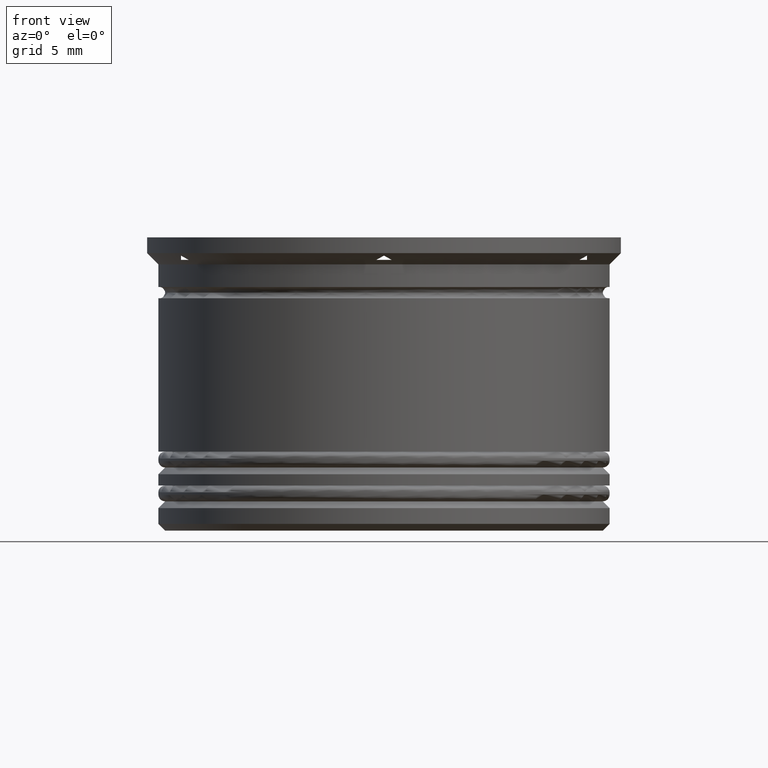
[diagram: clean part render]
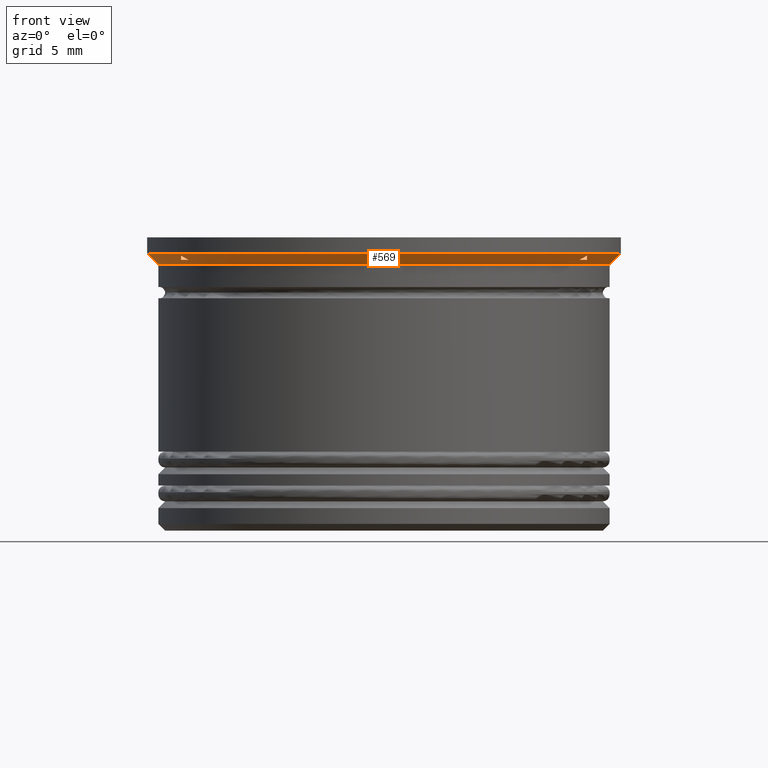
[diagram: same view with one face highlighted and labeled with its STEP entity id]
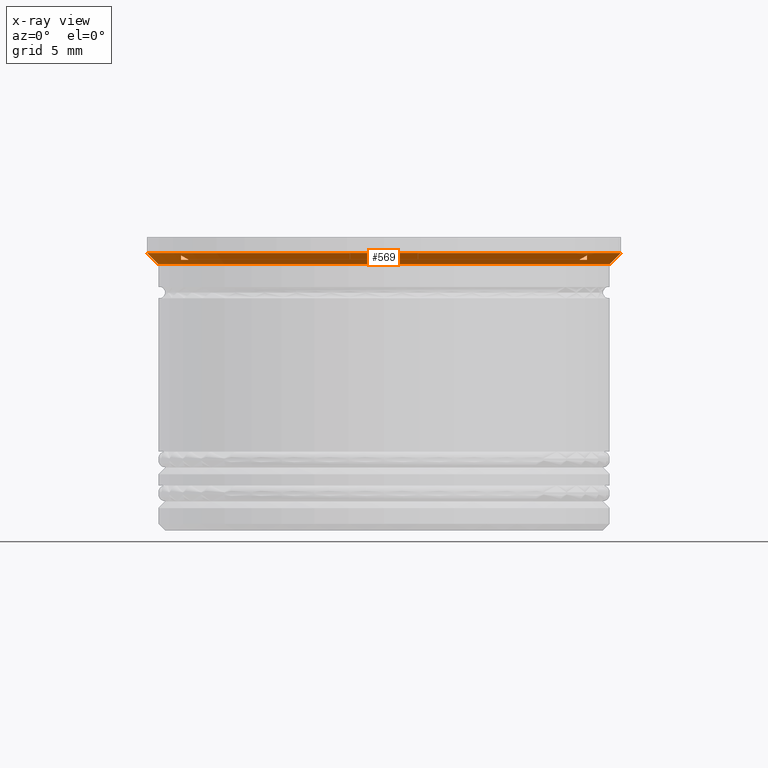
[diagram: x-ray of the same camera — body ghosted, the highlighted face saturated]
A machine part, front view. The second image highlights one B-rep face of the part: STEP entity #569.
The next image is the same camera in x-ray: the body ghosted, the highlighted face saturated — about 0% of this face is hidden behind the body in this view.
In plain terms, the highlighted conical surface has half-angle 45 deg.
Its self-contained STEP definition (entity closure, byte-faithful):
#1 = ORIENTED_EDGE ( 'NONE', *, *, #1690, .F. ) ;
#70 = DIRECTION ( 'NONE',  ( 1.000000000000000000, 0.000000000000000000, 0.000000000000000000 ) ) ;
#100 = CARTESIAN_POINT ( 'NONE',  ( 8.771878104801436038, -5.327858660307573935, -0.9375341423506967642 ) ) ;
#113 = CARTESIAN_POINT ( 'NONE',  ( 8.656921938165293540, -5.394228634059955674, -1.000000000000000000 ) ) ;
#119 = CARTESIAN_POINT ( 'NONE',  ( 0.000000000000000000, 0.000000000000000000, -1.000000000000000000 ) ) ;
#122 = DIRECTION ( 'NONE',  ( -0.000000000000000000, -0.000000000000000000, 1.000000000000000000 ) ) ;
#154 = CARTESIAN_POINT ( 'NONE',  ( 0.1135657146716469307, -10.32673764947687722, -0.8732623505231984495 ) ) ;
#159 = EDGE_CURVE ( 'NONE', #1623, #2000, #700, .T. ) ;
#164 = CARTESIAN_POINT ( 'NONE',  ( 0.000000000000000000, 0.000000000000000000, -0.6999999999999934053 ) ) ;
#166 = EDGE_CURVE ( 'NONE', #835, #1725, #699, .T. ) ;
#177 = CARTESIAN_POINT ( 'NONE',  ( -0.3430780618347059052, -10.19422863405994129, -1.000000000000000000 ) ) ;
#203 = CIRCLE ( 'NONE', #879, 10.19999999999999396 ) ;
#211 = EDGE_CURVE ( 'NONE', #1947, #1648, #1840, .T. ) ;
#235 = VECTOR ( 'NONE', #2147, 1000.000000000000000 ) ;
#282 = CARTESIAN_POINT ( 'NONE',  ( 8.886220419605121990, -5.261843094075900673, -0.8733858259559944548 ) ) ;
#286 = DIRECTION ( 'NONE',  ( -0.000000000000000000, -0.000000000000000000, 1.000000000000000000 ) ) ;
#292 = ORIENTED_EDGE ( 'NONE', *, *, #386, .T. ) ;
#324 = DIRECTION ( 'NONE',  ( 1.000000000000000000, 8.881784197001252323E-16, 0.000000000000000000 ) ) ;
#327 = CARTESIAN_POINT ( 'NONE',  ( 8.334195073742550113E-16, -10.39230484541326582, -0.8076951545867279147 ) ) ;
#348 = DIRECTION ( 'NONE',  ( -1.000000000000000000, 0.000000000000000000, 0.000000000000000000 ) ) ;
#374 = CARTESIAN_POINT ( 'NONE',  ( -9.000000000000003553, -5.065048013677642125, -0.8732473591012372971 ) ) ;
#380 = CIRCLE ( 'NONE', #1490, 10.19999999999999396 ) ;
#386 = EDGE_CURVE ( 'NONE', #1623, #1947, #524, .T. ) ;
#426 = EDGE_LOOP ( 'NONE', ( #576, #1315, #1239 ) ) ;
#457 = DIRECTION ( 'NONE',  ( 1.000000000000000000, 0.000000000000000000, 0.000000000000000000 ) ) ;
#471 = CARTESIAN_POINT ( 'NONE',  ( 0.000000000000000000, 0.000000000000000000, -1.199999999999999067 ) ) ;
#478 = CARTESIAN_POINT ( 'NONE',  ( 0.3430780618347067379, -10.19422863405993951, -1.000000000000000000 ) ) ;
#481 = CARTESIAN_POINT ( 'NONE',  ( 0.3430780618347067379, -10.19422863405993951, -1.000000000000000000 ) ) ;
#486 = FACE_BOUND ( 'NONE', #426, .T. ) ;
#487 = DIRECTION ( 'NONE',  ( -0.000000000000000000, -0.000000000000000000, -1.000000000000000000 ) ) ;
#491 = CONICAL_SURFACE ( 'NONE', #1880, 10.50000000000000000, 0.7853981633974500554 ) ;
#499 = AXIS2_PLACEMENT_3D ( 'NONE', #1469, #487, #1005 ) ;
#506 = CARTESIAN_POINT ( 'NONE',  ( 10.50000000000000000, 0.000000000000000000, -0.6999999999999934053 ) ) ;
#511 = DIRECTION ( 'NONE',  ( -0.000000000000000000, -0.000000000000000000, 1.000000000000000000 ) ) ;
#519 = VERTEX_POINT ( 'NONE', #622 ) ;
#524 = CIRCLE ( 'NONE', #944, 9.999999999999998224 ) ;
#526 = CARTESIAN_POINT ( 'NONE',  ( -9.000000000000003553, -4.933029205368312020, -0.9373980210031389593 ) ) ;
#569 = ADVANCED_FACE ( 'NONE', ( #2144, #1458, #1847, #486 ), #491, .T. ) ;
#570 = EDGE_CURVE ( 'NONE', #2000, #1648, #1777, .T. ) ;
#571 = CARTESIAN_POINT ( 'NONE',  ( 9.999999999999998224, 0.000000000000000000, -1.199999999999999067 ) ) ;
#576 = ORIENTED_EDGE ( 'NONE', *, *, #1558, .F. ) ;
#584 = B_SPLINE_CURVE_WITH_KNOTS ( 'NONE', 3,
 ( #1875, #374, #526, #1213 ),
 .UNSPECIFIED., .F., .F.,
 ( 4, 4 ),
 ( 0.007497172542765919746, 0.007934034258546097257 ),
 .UNSPECIFIED. ) ;
#586 = CARTESIAN_POINT ( 'NONE',  ( 9.000000000000001776, -5.196152422706633800, -0.8076951545867279147 ) ) ;
#622 = CARTESIAN_POINT ( 'NONE',  ( -9.000000000000003553, -5.196152422706632912, -0.8076951545867272486 ) ) ;
#658 = CARTESIAN_POINT ( 'NONE',  ( 0.2278986158362686643, -10.26072751821225282, -0.9374128149154711265 ) ) ;
#692 = ORIENTED_EDGE ( 'NONE', *, *, #159, .F. ) ;
#699 = B_SPLINE_CURVE_WITH_KNOTS ( 'NONE', 3,
 ( #1493, #1865, #1982, #1019 ),
 .UNSPECIFIED., .F., .F.,
 ( 4, 4 ),
 ( 0.01787857670039337890, 0.01831925074680791979 ),
 .UNSPECIFIED. ) ;
#700 = LINE ( 'NONE', #1685, #1149 ) ;
#716 = CARTESIAN_POINT ( 'NONE',  ( -10.50000000000000000, 1.285879139104720831E-15, -0.6999999999999934053 ) ) ;
#750 = EDGE_CURVE ( 'NONE', #1725, #1606, #2065, .T. ) ;
#788 = ORIENTED_EDGE ( 'NONE', *, *, #818, .T. ) ;
#818 = EDGE_CURVE ( 'NONE', #1297, #2173, #203, .T. ) ;
#834 = CARTESIAN_POINT ( 'NONE',  ( 9.000000000000001776, -5.196152422706633800, -0.8076951545867279147 ) ) ;
#835 = VERTEX_POINT ( 'NONE', #2174 ) ;
#843 = EDGE_LOOP ( 'NONE', ( #692, #292, #2142, #1165 ) ) ;
#879 = AXIS2_PLACEMENT_3D ( 'NONE', #1259, #1570, #70 ) ;
#903 = EDGE_CURVE ( 'NONE', #835, #1606, #380, .T. ) ;
#924 = CARTESIAN_POINT ( 'NONE',  ( -9.999999999999998224, 1.224646799147353059E-15, -1.199999999999999067 ) ) ;
#944 = AXIS2_PLACEMENT_3D ( 'NONE', #471, #286, #457 ) ;
#955 = EDGE_CURVE ( 'NONE', #519, #1730, #584, .T. ) ;
#1005 = DIRECTION ( 'NONE',  ( 1.000000000000000000, -1.776356839400250465E-14, 0.000000000000000000 ) ) ;
#1017 = CARTESIAN_POINT ( 'NONE',  ( -0.3430780618347059052, -10.19422863405994129, -1.000000000000000000 ) ) ;
#1019 = CARTESIAN_POINT ( 'NONE',  ( 9.000000000000001776, -5.196152422706633800, -0.8076951545867279147 ) ) ;
#1100 = EDGE_LOOP ( 'NONE', ( #2067, #788, #1 ) ) ;
#1136 = CARTESIAN_POINT ( 'NONE',  ( -8.656921938165293540, -5.394228634059956562, -1.000000000000000000 ) ) ;
#1149 = VECTOR ( 'NONE', #2010, 1000.000000000000000 ) ;
#1165 = ORIENTED_EDGE ( 'NONE', *, *, #570, .F. ) ;
#1172 = CARTESIAN_POINT ( 'NONE',  ( 8.334195073742550113E-16, -10.39230484541326582, -0.8076951545867279147 ) ) ;
#1213 = CARTESIAN_POINT ( 'NONE',  ( -9.000000000000003553, -4.799999999999982947, -1.000000000000000000 ) ) ;
#1239 = ORIENTED_EDGE ( 'NONE', *, *, #955, .F. ) ;
#1242 = ORIENTED_EDGE ( 'NONE', *, *, #750, .F. ) ;
#1259 = CARTESIAN_POINT ( 'NONE',  ( 0.000000000000000000, 0.000000000000000000, -1.000000000000000000 ) ) ;
#1262 = VERTEX_POINT ( 'NONE', #1646 ) ;
#1265 = CARTESIAN_POINT ( 'NONE',  ( -9.000000000000003553, -5.196152422706632912, -0.8076951545867272486 ) ) ;
#1270 = CARTESIAN_POINT ( 'NONE',  ( 8.656921938165293540, -5.394228634059955674, -1.000000000000000000 ) ) ;
#1297 = VERTEX_POINT ( 'NONE', #481 ) ;
#1304 = CARTESIAN_POINT ( 'NONE',  ( -8.886434285328355998, -5.261719618643019736, -0.8732623505231976724 ) ) ;
#1305 = B_SPLINE_CURVE_WITH_KNOTS ( 'NONE', 3,
 ( #478, #658, #154, #1172 ),
 .UNSPECIFIED., .F., .F.,
 ( 4, 4 ),
 ( 0.01913095655797705102, 0.01957275054198196265 ),
 .UNSPECIFIED. ) ;
#1310 = ORIENTED_EDGE ( 'NONE', *, *, #903, .T. ) ;
#1315 = ORIENTED_EDGE ( 'NONE', *, *, #1628, .T. ) ;
#1360 = CIRCLE ( 'NONE', #499, 10.19999999999999396 ) ;
#1458 = FACE_BOUND ( 'NONE', #1948, .T. ) ;
#1469 = CARTESIAN_POINT ( 'NONE',  ( 0.000000000000000000, 0.000000000000000000, -1.000000000000000000 ) ) ;
#1473 = DIRECTION ( 'NONE',  ( -0.000000000000000000, -0.000000000000000000, -1.000000000000000000 ) ) ;
#1490 = AXIS2_PLACEMENT_3D ( 'NONE', #119, #1473, #324 ) ;
#1493 = CARTESIAN_POINT ( 'NONE',  ( 9.000000000000001776, -4.799999999999985612, -1.000000000000000000 ) ) ;
#1552 = ORIENTED_EDGE ( 'NONE', *, *, #166, .F. ) ;
#1558 = EDGE_CURVE ( 'NONE', #1762, #519, #1585, .T. ) ;
#1570 = DIRECTION ( 'NONE',  ( -0.000000000000000000, -0.000000000000000000, -1.000000000000000000 ) ) ;
#1585 = B_SPLINE_CURVE_WITH_KNOTS ( 'NONE', 3,
 ( #1136, #1608, #1304, #1265 ),
 .UNSPECIFIED., .F., .F.,
 ( 4, 4 ),
 ( 0.01913095655797705796, 0.01957275054198196959 ),
 .UNSPECIFIED. ) ;
#1606 = VERTEX_POINT ( 'NONE', #113 ) ;
#1608 = CARTESIAN_POINT ( 'NONE',  ( -8.772101384163734750, -5.327729749907644141, -0.9374128149154696832 ) ) ;
#1623 = VERTEX_POINT ( 'NONE', #924 ) ;
#1626 = DIRECTION ( 'NONE',  ( 1.000000000000000000, 0.000000000000000000, 0.000000000000000000 ) ) ;
#1628 = EDGE_CURVE ( 'NONE', #1762, #1730, #1360, .T. ) ;
#1646 = CARTESIAN_POINT ( 'NONE',  ( 8.334195073742550113E-16, -10.39230484541326582, -0.8076951545867279147 ) ) ;
#1648 = VERTEX_POINT ( 'NONE', #1848 ) ;
#1649 = CARTESIAN_POINT ( 'NONE',  ( 0.000000000000000000, 0.000000000000000000, -0.6999999999999934053 ) ) ;
#1659 = CARTESIAN_POINT ( 'NONE',  ( -0.1137795803948791346, -10.32661417404399984, -0.8733858259559953430 ) ) ;
#1685 = CARTESIAN_POINT ( 'NONE',  ( -10.50000000000000000, 1.285879139104720831E-15, -0.6999999999999934053 ) ) ;
#1690 = EDGE_CURVE ( 'NONE', #1262, #2173, #1800, .T. ) ;
#1704 = EDGE_CURVE ( 'NONE', #1297, #1262, #1305, .T. ) ;
#1725 = VERTEX_POINT ( 'NONE', #834 ) ;
#1730 = VERTEX_POINT ( 'NONE', #2154 ) ;
#1762 = VERTEX_POINT ( 'NONE', #1892 ) ;
#1777 = CIRCLE ( 'NONE', #2129, 10.50000000000000000 ) ;
#1800 = B_SPLINE_CURVE_WITH_KNOTS ( 'NONE', 3,
 ( #327, #1659, #1838, #177 ),
 .UNSPECIFIED., .F., .F.,
 ( 4, 4 ),
 ( 0.008732135737192486119, 0.009172198939935490014 ),
 .UNSPECIFIED. ) ;
#1838 = CARTESIAN_POINT ( 'NONE',  ( -0.2281218951985654608, -10.26059860781232480, -0.9375341423506967642 ) ) ;
#1840 = LINE ( 'NONE', #506, #235 ) ;
#1847 = FACE_BOUND ( 'NONE', #1100, .T. ) ;
#1848 = CARTESIAN_POINT ( 'NONE',  ( 10.50000000000000000, 0.000000000000000000, -0.6999999999999934053 ) ) ;
#1865 = CARTESIAN_POINT ( 'NONE',  ( 9.000000000000001776, -4.932792925735824063, -0.9375092114184286896 ) ) ;
#1875 = CARTESIAN_POINT ( 'NONE',  ( -9.000000000000003553, -5.196152422706632912, -0.8076951545867272486 ) ) ;
#1880 = AXIS2_PLACEMENT_3D ( 'NONE', #164, #511, #1626 ) ;
#1892 = CARTESIAN_POINT ( 'NONE',  ( -8.656921938165293540, -5.394228634059956562, -1.000000000000000000 ) ) ;
#1947 = VERTEX_POINT ( 'NONE', #571 ) ;
#1948 = EDGE_LOOP ( 'NONE', ( #1552, #1310, #1242 ) ) ;
#1982 = CARTESIAN_POINT ( 'NONE',  ( 9.000000000000001776, -5.064821978853756512, -0.8733603765131664476 ) ) ;
#2000 = VERTEX_POINT ( 'NONE', #716 ) ;
#2010 = DIRECTION ( 'NONE',  ( -0.7071067811865487940, 8.659560562354948882E-17, 0.7071067811865463515 ) ) ;
#2065 = B_SPLINE_CURVE_WITH_KNOTS ( 'NONE', 3,
 ( #586, #282, #100, #1270 ),
 .UNSPECIFIED., .F., .F.,
 ( 4, 4 ),
 ( 0.008732135737192487854, 0.009172198939935491749 ),
 .UNSPECIFIED. ) ;
#2067 = ORIENTED_EDGE ( 'NONE', *, *, #1704, .F. ) ;
#2129 = AXIS2_PLACEMENT_3D ( 'NONE', #1649, #122, #348 ) ;
#2142 = ORIENTED_EDGE ( 'NONE', *, *, #211, .T. ) ;
#2144 = FACE_OUTER_BOUND ( 'NONE', #843, .T. ) ;
#2147 = DIRECTION ( 'NONE',  ( 0.7071067811865487940, 0.000000000000000000, 0.7071067811865463515 ) ) ;
#2154 = CARTESIAN_POINT ( 'NONE',  ( -9.000000000000003553, -4.799999999999982947, -1.000000000000000000 ) ) ;
#2173 = VERTEX_POINT ( 'NONE', #1017 ) ;
#2174 = CARTESIAN_POINT ( 'NONE',  ( 9.000000000000001776, -4.799999999999985612, -1.000000000000000000 ) ) ;